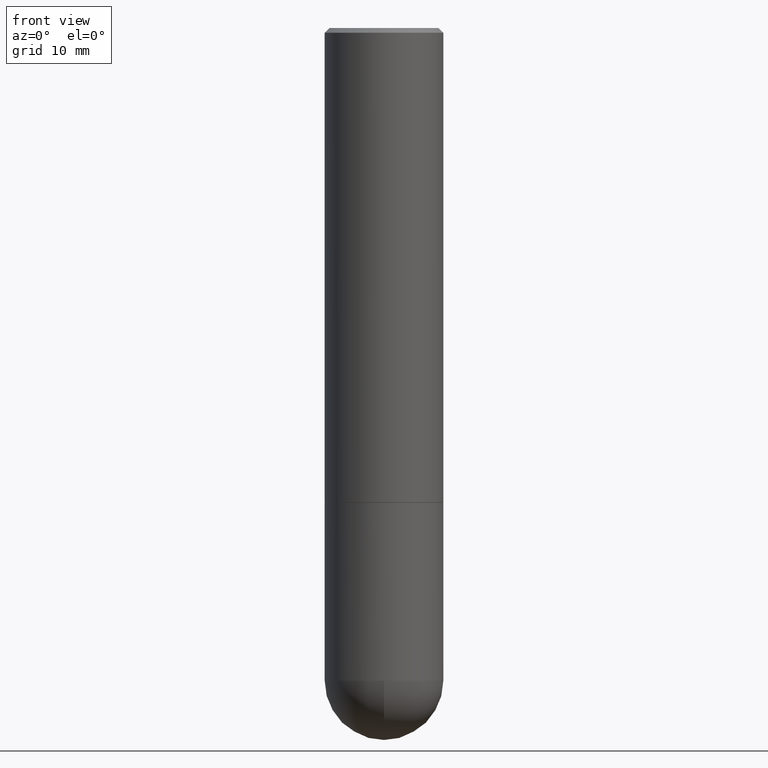
[diagram: clean part render]
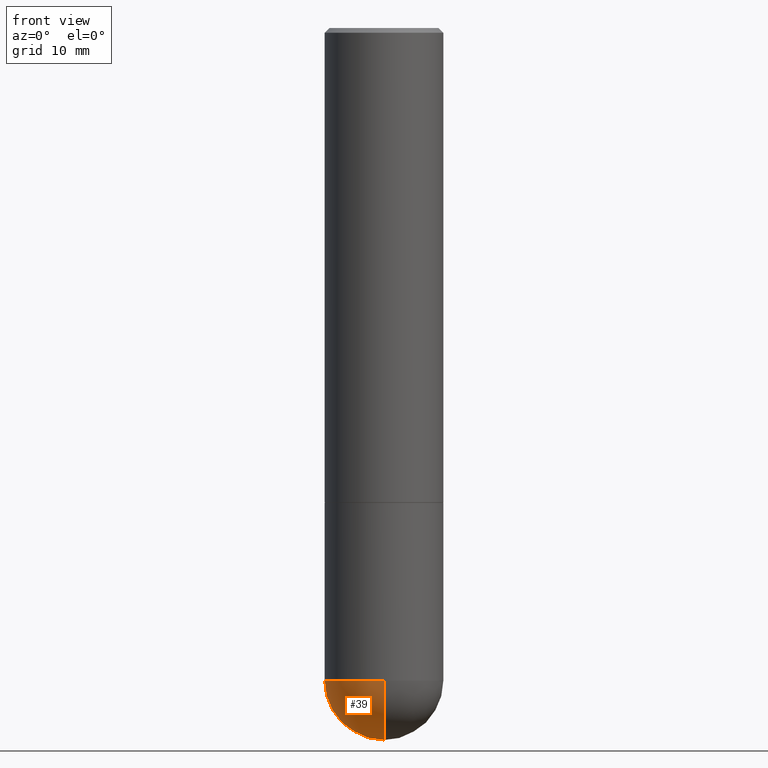
[diagram: same view with one face highlighted and labeled with its STEP entity id]
A machine part, front view. The second image highlights one B-rep face of the part: STEP entity #39.
In plain terms, the highlighted spherical surface has radius 6.35 mm.
Its self-contained STEP definition (entity closure, byte-faithful):
#8 = CARTESIAN_POINT ( 'NONE',  ( -0.2500000000000000000, -6.515911340352222020E-15, -2.750000000000000000 ) ) ;
#12 = ORIENTED_EDGE ( 'NONE', *, *, #319, .F. ) ;
#17 = VERTEX_POINT ( 'NONE', #228 ) ;
#39 = ADVANCED_FACE ( 'NONE', ( #91 ), #350, .T. ) ;
#42 = CIRCLE ( 'NONE', #253, 0.2500000000000000000 ) ;
#57 = EDGE_CURVE ( 'NONE', #307, #17, #408, .T. ) ;
#70 = VERTEX_POINT ( 'NONE', #347 ) ;
#74 = DIRECTION ( 'NONE',  ( -1.000000000000000000, 7.105427357601001070E-15, -4.926315508542082329E-29 ) ) ;
#91 = FACE_OUTER_BOUND ( 'NONE', #302, .T. ) ;
#95 = DIRECTION ( 'NONE',  ( 6.982962677686266711E-15, 1.000000000000000000, 0.000000000000000000 ) ) ;
#102 = AXIS2_PLACEMENT_3D ( 'NONE', #155, #244, #95 ) ;
#118 = ORIENTED_EDGE ( 'NONE', *, *, #373, .T. ) ;
#134 = AXIS2_PLACEMENT_3D ( 'NONE', #202, #74, #208 ) ;
#142 = CIRCLE ( 'NONE', #149, 0.2500000000000000000 ) ;
#149 = AXIS2_PLACEMENT_3D ( 'NONE', #161, #333, #204 ) ;
#151 = ORIENTED_EDGE ( 'NONE', *, *, #57, .F. ) ;
#155 = CARTESIAN_POINT ( 'NONE',  ( 6.393919439095240515E-29, -1.007575604995870173E-14, -2.750000000000000444 ) ) ;
#161 = CARTESIAN_POINT ( 'NONE',  ( 6.725039217009124520E-29, -9.601573681818649859E-15, -2.750000000000000000 ) ) ;
#163 = CIRCLE ( 'NONE', #134, 0.2500000000000001110 ) ;
#190 = CARTESIAN_POINT ( 'NONE',  ( 7.015976219256266741E-29, -1.093331829968014633E-14, -3.000000000000000888 ) ) ;
#202 = CARTESIAN_POINT ( 'NONE',  ( 6.393919439095240515E-29, -1.007575604995870173E-14, -2.750000000000000444 ) ) ;
#204 = DIRECTION ( 'NONE',  ( 1.000000000000000000, -6.982962677686262766E-15, 0.000000000000000000 ) ) ;
#207 = EDGE_CURVE ( 'NONE', #407, #70, #142, .T. ) ;
#208 = DIRECTION ( 'NONE',  ( -7.105427357601001859E-15, -1.000000000000000000, 0.000000000000000000 ) ) ;
#224 = CARTESIAN_POINT ( 'NONE',  ( 6.393919439095240515E-29, -1.007575604995870173E-14, -2.750000000000000444 ) ) ;
#228 = CARTESIAN_POINT ( 'NONE',  ( 1.745740669421632745E-15, 0.2499999999999902300, -2.750000000000000888 ) ) ;
#230 = DIRECTION ( 'NONE',  ( 1.000000000000000000, -6.982962677686262766E-15, 0.000000000000000000 ) ) ;
#244 = DIRECTION ( 'NONE',  ( 1.000000000000000000, -6.982962677686265922E-15, 4.883557194083112340E-29 ) ) ;
#249 = DIRECTION ( 'NONE',  ( 6.982962677686265922E-15, 1.000000000000000000, -4.370956789862818783E-15 ) ) ;
#253 = AXIS2_PLACEMENT_3D ( 'NONE', #381, #315, #230 ) ;
#302 = EDGE_LOOP ( 'NONE', ( #151, #118, #338, #12 ) ) ;
#307 = VERTEX_POINT ( 'NONE', #190 ) ;
#315 = DIRECTION ( 'NONE',  ( -2.445468806185136597E-29, 3.491481338843145583E-15, 1.000000000000000000 ) ) ;
#319 = EDGE_CURVE ( 'NONE', #17, #407, #42, .T. ) ;
#333 = DIRECTION ( 'NONE',  ( -2.445468806185136597E-29, 3.491481338843145583E-15, 1.000000000000000000 ) ) ;
#338 = ORIENTED_EDGE ( 'NONE', *, *, #207, .F. ) ;
#347 = CARTESIAN_POINT ( 'NONE',  ( -1.776356839400184989E-15, -0.2500000000000098810, -2.749999999999998668 ) ) ;
#350 = SPHERICAL_SURFACE ( 'NONE', #386, 0.2500000000000001110 ) ;
#373 = EDGE_CURVE ( 'NONE', #307, #70, #163, .T. ) ;
#381 = CARTESIAN_POINT ( 'NONE',  ( 6.725039217009124520E-29, -9.601573681818649859E-15, -2.750000000000000000 ) ) ;
#383 = DIRECTION ( 'NONE',  ( -1.000000000000000000, 6.982962677686265922E-15, -4.883557194083113462E-29 ) ) ;
#386 = AXIS2_PLACEMENT_3D ( 'NONE', #224, #383, #249 ) ;
#407 = VERTEX_POINT ( 'NONE', #8 ) ;
#408 = CIRCLE ( 'NONE', #102, 0.2500000000000001110 ) ;